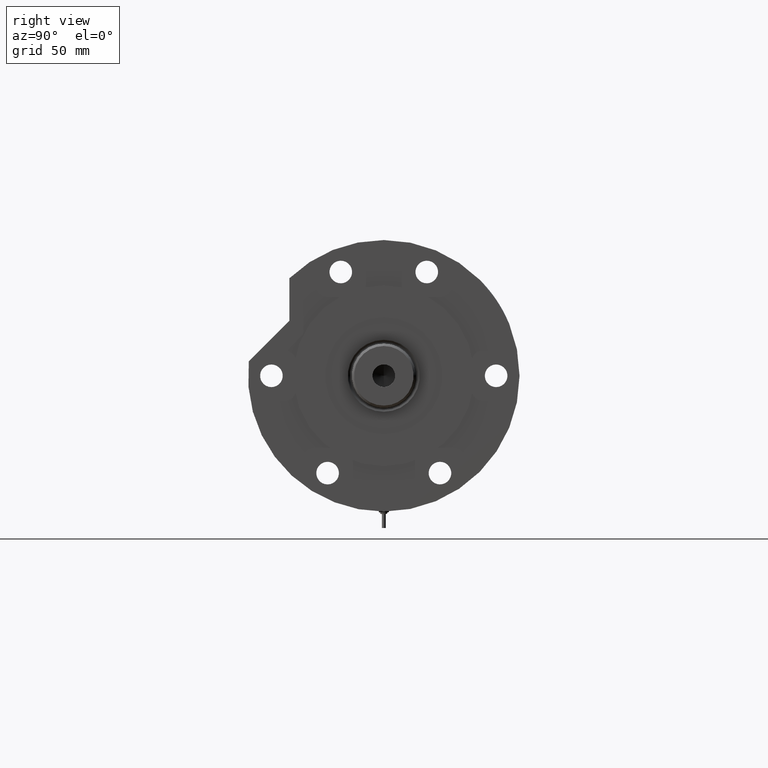
[diagram: clean part render]
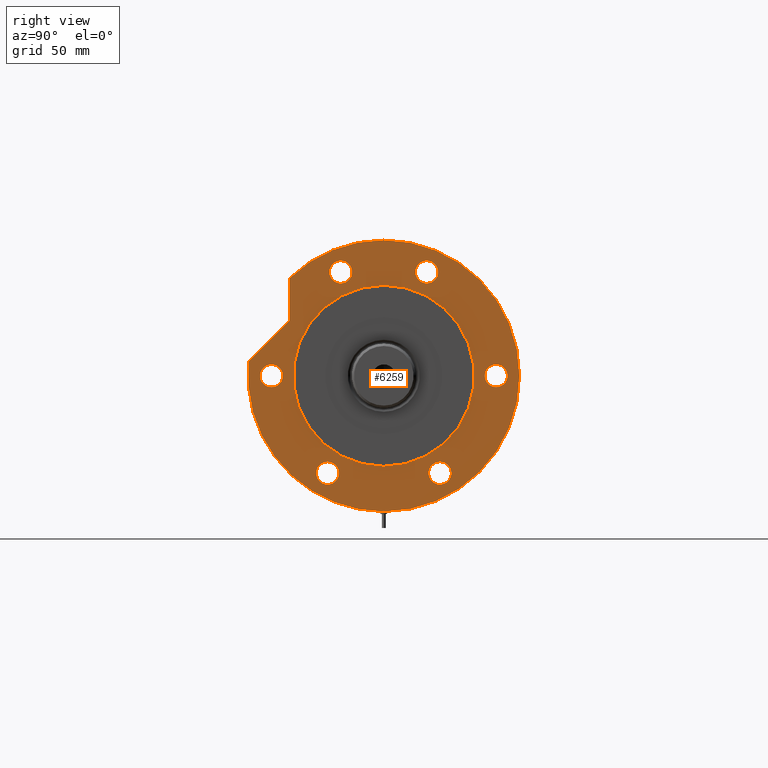
[diagram: same view with one face highlighted and labeled with its STEP entity id]
A machine part, right view. The second image highlights one B-rep face of the part: STEP entity #6259.
In plain terms, the highlighted planar face has unit normal (1, 0, -0).
Its self-contained STEP definition (entity closure, byte-faithful):
#30 = DIRECTION ( 'NONE',  ( 0.7071067811865511255, -0.7071067811865440200, 0.000000000000000000 ) ) ;
#47 = DIRECTION ( 'NONE',  ( 0.000000000000000000, 0.000000000000000000, 1.000000000000000000 ) ) ;
#55 = EDGE_CURVE ( 'NONE', #4494, #668, #3710, .T. ) ;
#89 = AXIS2_PLACEMENT_3D ( 'NONE', #445, #3845, #6160 ) ;
#164 = CARTESIAN_POINT ( 'NONE',  ( -87.00000000000000000, 0.000000000000000000, 31.00000000000000000 ) ) ;
#203 = CIRCLE ( 'NONE', #6911, 7.249999999999992895 ) ;
#259 = CARTESIAN_POINT ( 'NONE',  ( 62.54236590573034249, 60.47687547247904405, 31.00000000000000000 ) ) ;
#288 = CARTESIAN_POINT ( 'NONE',  ( 59.26932634081251905, 27.55320713028675073, 31.00000000000000000 ) ) ;
#336 = DIRECTION ( 'NONE',  ( 1.000000000000000000, 0.000000000000000000, 0.000000000000000000 ) ) ;
#443 = VECTOR ( 'NONE', #30, 999.9999999999998863 ) ;
#445 = CARTESIAN_POINT ( 'NONE',  ( -62.35382907247965534, 35.99999999999985079, 31.00000000000000000 ) ) ;
#470 = ORIENTED_EDGE ( 'NONE', *, *, #3577, .F. ) ;
#480 = EDGE_LOOP ( 'NONE', ( #6977, #1815 ) ) ;
#513 = DIRECTION ( 'NONE',  ( 1.000000000000000000, 0.000000000000000000, 0.000000000000000000 ) ) ;
#542 = EDGE_CURVE ( 'NONE', #1286, #6082, #6138, .T. ) ;
#546 = CARTESIAN_POINT ( 'NONE',  ( 58.00000000000000000, 7.102951435054648059E-15, 31.00000000000000000 ) ) ;
#560 = AXIS2_PLACEMENT_3D ( 'NONE', #1829, #2441, #4154 ) ;
#566 = AXIS2_PLACEMENT_3D ( 'NONE', #2887, #4719, #2322 ) ;
#576 = CIRCLE ( 'NONE', #1559, 7.249999999999992895 ) ;
#593 = CARTESIAN_POINT ( 'NONE',  ( -55.10382907247942796, -36.00000000000027711, 31.00000000000000000 ) ) ;
#608 = LINE ( 'NONE', #4160, #443 ) ;
#612 = CARTESIAN_POINT ( 'NONE',  ( 7.250000000000001776, 72.00000000000000000, 31.00000000000000000 ) ) ;
#668 = VERTEX_POINT ( 'NONE', #4999 ) ;
#723 = ORIENTED_EDGE ( 'NONE', *, *, #4625, .F. ) ;
#830 = EDGE_LOOP ( 'NONE', ( #723, #1274 ) ) ;
#948 = VERTEX_POINT ( 'NONE', #288 ) ;
#1026 = DIRECTION ( 'NONE',  ( 1.000000000000000000, 0.000000000000000000, -0.000000000000000000 ) ) ;
#1040 = AXIS2_PLACEMENT_3D ( 'NONE', #4398, #6636, #5487 ) ;
#1070 = AXIS2_PLACEMENT_3D ( 'NONE', #4401, #3294, #5604 ) ;
#1097 = EDGE_LOOP ( 'NONE', ( #470, #3645 ) ) ;
#1138 = VERTEX_POINT ( 'NONE', #593 ) ;
#1146 = CARTESIAN_POINT ( 'NONE',  ( 59.26932634081251905, -27.55320713028675073, 31.00000000000000000 ) ) ;
#1158 = EDGE_CURVE ( 'NONE', #5825, #948, #1289, .T. ) ;
#1178 = VERTEX_POINT ( 'NONE', #6276 ) ;
#1203 = CIRCLE ( 'NONE', #6189, 7.249999999999992895 ) ;
#1274 = ORIENTED_EDGE ( 'NONE', *, *, #2329, .F. ) ;
#1286 = VERTEX_POINT ( 'NONE', #164 ) ;
#1289 = CIRCLE ( 'NONE', #1775, 7.249999999999992895 ) ;
#1340 = CARTESIAN_POINT ( 'NONE',  ( -69.60382907247965534, 35.99999999999985079, 31.00000000000000000 ) ) ;
#1373 = DIRECTION ( 'NONE',  ( 1.000000000000000000, 0.000000000000000000, -0.000000000000000000 ) ) ;
#1384 = DIRECTION ( 'NONE',  ( 0.000000000000000000, 0.000000000000000000, 1.000000000000000000 ) ) ;
#1395 = ORIENTED_EDGE ( 'NONE', *, *, #2278, .T. ) ;
#1407 = CARTESIAN_POINT ( 'NONE',  ( -62.35382907247942086, -36.00000000000027711, 31.00000000000000000 ) ) ;
#1449 = DIRECTION ( 'NONE',  ( 1.000000000000000000, 0.000000000000000000, 0.000000000000000000 ) ) ;
#1548 = CIRCLE ( 'NONE', #4612, 7.250000000000001776 ) ;
#1554 = CARTESIAN_POINT ( 'NONE',  ( 9.196694222441541555, 86.51254715576759224, 31.00000000000000000 ) ) ;
#1559 = AXIS2_PLACEMENT_3D ( 'NONE', #1407, #3738, #2138 ) ;
#1605 = CARTESIAN_POINT ( 'NONE',  ( 73.76932634081251194, 27.55320713028675073, 31.00000000000000000 ) ) ;
#1680 = CIRCLE ( 'NONE', #3744, 58.00000000000000000 ) ;
#1709 = CARTESIAN_POINT ( 'NONE',  ( 66.51932634081252615, 27.55320713028675073, 31.00000000000000000 ) ) ;
#1733 = ORIENTED_EDGE ( 'NONE', *, *, #3204, .F. ) ;
#1775 = AXIS2_PLACEMENT_3D ( 'NONE', #1709, #47, #5133 ) ;
#1801 = CIRCLE ( 'NONE', #89, 7.250000000000006217 ) ;
#1815 = ORIENTED_EDGE ( 'NONE', *, *, #5747, .F. ) ;
#1829 = CARTESIAN_POINT ( 'NONE',  ( 0.000000000000000000, 72.00000000000000000, 31.00000000000000000 ) ) ;
#1836 = VERTEX_POINT ( 'NONE', #1146 ) ;
#1863 = EDGE_LOOP ( 'NONE', ( #2640, #5160 ) ) ;
#1954 = CIRCLE ( 'NONE', #5471, 58.00000000000000000 ) ;
#1955 = EDGE_CURVE ( 'NONE', #5180, #1990, #608, .T. ) ;
#1964 = ORIENTED_EDGE ( 'NONE', *, *, #542, .T. ) ;
#1990 = VERTEX_POINT ( 'NONE', #6401 ) ;
#2065 = DIRECTION ( 'NONE',  ( 0.000000000000000000, 0.000000000000000000, 1.000000000000000000 ) ) ;
#2105 = CARTESIAN_POINT ( 'NONE',  ( 0.000000000000000000, 0.000000000000000000, 31.00000000000000000 ) ) ;
#2133 = FACE_BOUND ( 'NONE', #2504, .T. ) ;
#2138 = DIRECTION ( 'NONE',  ( 1.000000000000000000, 0.000000000000000000, 0.000000000000000000 ) ) ;
#2140 = CARTESIAN_POINT ( 'NONE',  ( -62.35382907247942086, -36.00000000000027711, 31.00000000000000000 ) ) ;
#2191 = CARTESIAN_POINT ( 'NONE',  ( 0.000000000000000000, 0.000000000000000000, 31.00000000000000000 ) ) ;
#2220 = ORIENTED_EDGE ( 'NONE', *, *, #4650, .F. ) ;
#2243 = DIRECTION ( 'NONE',  ( 1.000000000000000000, 0.000000000000000000, 0.000000000000000000 ) ) ;
#2248 = CARTESIAN_POINT ( 'NONE',  ( -7.250000000000001776, 72.00000000000000000, 31.00000000000000000 ) ) ;
#2278 = EDGE_CURVE ( 'NONE', #5180, #1286, #3250, .T. ) ;
#2281 = EDGE_LOOP ( 'NONE', ( #1733, #4727, #1395, #1964, #4538 ) ) ;
#2322 = DIRECTION ( 'NONE',  ( 1.000000000000000000, 0.000000000000000000, 0.000000000000000000 ) ) ;
#2329 = EDGE_CURVE ( 'NONE', #1178, #4621, #4949, .T. ) ;
#2344 = CARTESIAN_POINT ( 'NONE',  ( 0.000000000000000000, 0.000000000000000000, 31.00000000000000000 ) ) ;
#2373 = EDGE_CURVE ( 'NONE', #7357, #6385, #6410, .T. ) ;
#2374 = VERTEX_POINT ( 'NONE', #6889 ) ;
#2411 = LINE ( 'NONE', #6595, #6053 ) ;
#2441 = DIRECTION ( 'NONE',  ( 0.000000000000000000, 0.000000000000000000, 1.000000000000000000 ) ) ;
#2480 = CARTESIAN_POINT ( 'NONE',  ( 87.00000000000000000, 1.065442715258197209E-14, 31.00000000000000000 ) ) ;
#2504 = EDGE_LOOP ( 'NONE', ( #7364, #3614 ) ) ;
#2640 = ORIENTED_EDGE ( 'NONE', *, *, #4562, .F. ) ;
#2887 = CARTESIAN_POINT ( 'NONE',  ( 0.000000000000000000, -72.00000000000000000, 31.00000000000000000 ) ) ;
#2908 = DIRECTION ( 'NONE',  ( 1.000000000000000000, 0.000000000000000000, 0.000000000000000000 ) ) ;
#2962 = CARTESIAN_POINT ( 'NONE',  ( 0.000000000000000000, 0.000000000000000000, 31.00000000000000000 ) ) ;
#2998 = CARTESIAN_POINT ( 'NONE',  ( 0.000000000000000000, 72.00000000000000000, 31.00000000000000000 ) ) ;
#3093 = ORIENTED_EDGE ( 'NONE', *, *, #5102, .F. ) ;
#3148 = DIRECTION ( 'NONE',  ( 0.000000000000000000, 0.000000000000000000, 1.000000000000000000 ) ) ;
#3159 = AXIS2_PLACEMENT_3D ( 'NONE', #4513, #1384, #5634 ) ;
#3204 = EDGE_CURVE ( 'NONE', #1990, #3385, #2411, .T. ) ;
#3250 = CIRCLE ( 'NONE', #6039, 87.00000000000000000 ) ;
#3252 = CARTESIAN_POINT ( 'NONE',  ( -69.60382907247941375, -36.00000000000027711, 31.00000000000000000 ) ) ;
#3294 = DIRECTION ( 'NONE',  ( 0.000000000000000000, 0.000000000000000000, 1.000000000000000000 ) ) ;
#3299 = EDGE_CURVE ( 'NONE', #4227, #1138, #576, .T. ) ;
#3337 = CARTESIAN_POINT ( 'NONE',  ( -62.35382907247965534, 35.99999999999985079, 31.00000000000000000 ) ) ;
#3385 = VERTEX_POINT ( 'NONE', #259 ) ;
#3476 = DIRECTION ( 'NONE',  ( 0.000000000000000000, 0.000000000000000000, 1.000000000000000000 ) ) ;
#3521 = CIRCLE ( 'NONE', #6569, 87.00000000000000000 ) ;
#3577 = EDGE_CURVE ( 'NONE', #6385, #7357, #5185, .T. ) ;
#3614 = ORIENTED_EDGE ( 'NONE', *, *, #5786, .F. ) ;
#3645 = ORIENTED_EDGE ( 'NONE', *, *, #2373, .F. ) ;
#3710 = CIRCLE ( 'NONE', #6629, 7.250000000000006217 ) ;
#3738 = DIRECTION ( 'NONE',  ( 0.000000000000000000, 0.000000000000000000, 1.000000000000000000 ) ) ;
#3739 = CIRCLE ( 'NONE', #1070, 7.249999999999992895 ) ;
#3744 = AXIS2_PLACEMENT_3D ( 'NONE', #2105, #5483, #1449 ) ;
#3845 = DIRECTION ( 'NONE',  ( 0.000000000000000000, 0.000000000000000000, 1.000000000000000000 ) ) ;
#3888 = FACE_BOUND ( 'NONE', #4425, .T. ) ;
#3929 = PLANE ( 'NONE',  #6936 ) ;
#4107 = AXIS2_PLACEMENT_3D ( 'NONE', #2998, #7468, #2243 ) ;
#4154 = DIRECTION ( 'NONE',  ( 1.000000000000000000, 0.000000000000000000, 0.000000000000000000 ) ) ;
#4160 = CARTESIAN_POINT ( 'NONE',  ( 47.85462068910451450, 47.85462068910500477, 31.00000000000000000 ) ) ;
#4227 = VERTEX_POINT ( 'NONE', #3252 ) ;
#4274 = EDGE_CURVE ( 'NONE', #1836, #2374, #3739, .T. ) ;
#4393 = CARTESIAN_POINT ( 'NONE',  ( 66.51932634081252615, 27.55320713028675073, 31.00000000000000000 ) ) ;
#4398 = CARTESIAN_POINT ( 'NONE',  ( 0.000000000000000000, 0.000000000000000000, 31.00000000000000000 ) ) ;
#4401 = CARTESIAN_POINT ( 'NONE',  ( 66.51932634081252615, -27.55320713028675073, 31.00000000000000000 ) ) ;
#4425 = EDGE_LOOP ( 'NONE', ( #7415, #3093 ) ) ;
#4442 = DIRECTION ( 'NONE',  ( 1.000000000000000000, 0.000000000000000000, 0.000000000000000000 ) ) ;
#4494 = VERTEX_POINT ( 'NONE', #1340 ) ;
#4513 = CARTESIAN_POINT ( 'NONE',  ( 66.51932634081252615, -27.55320713028675073, 31.00000000000000000 ) ) ;
#4538 = ORIENTED_EDGE ( 'NONE', *, *, #6822, .T. ) ;
#4562 = EDGE_CURVE ( 'NONE', #7446, #6915, #1680, .T. ) ;
#4612 = AXIS2_PLACEMENT_3D ( 'NONE', #7283, #2065, #336 ) ;
#4621 = VERTEX_POINT ( 'NONE', #6129 ) ;
#4625 = EDGE_CURVE ( 'NONE', #4621, #1178, #1548, .T. ) ;
#4650 = EDGE_CURVE ( 'NONE', #948, #5825, #203, .T. ) ;
#4719 = DIRECTION ( 'NONE',  ( 0.000000000000000000, 0.000000000000000000, 1.000000000000000000 ) ) ;
#4727 = ORIENTED_EDGE ( 'NONE', *, *, #1955, .F. ) ;
#4895 = DIRECTION ( 'NONE',  ( 1.000000000000000000, 0.000000000000000000, 0.000000000000000000 ) ) ;
#4949 = CIRCLE ( 'NONE', #566, 7.250000000000001776 ) ;
#4999 = CARTESIAN_POINT ( 'NONE',  ( -55.10382907247964823, 35.99999999999985079, 31.00000000000000000 ) ) ;
#5102 = EDGE_CURVE ( 'NONE', #668, #4494, #1801, .T. ) ;
#5133 = DIRECTION ( 'NONE',  ( 1.000000000000000000, 0.000000000000000000, 0.000000000000000000 ) ) ;
#5160 = ORIENTED_EDGE ( 'NONE', *, *, #7242, .F. ) ;
#5180 = VERTEX_POINT ( 'NONE', #1554 ) ;
#5185 = CIRCLE ( 'NONE', #560, 7.250000000000001776 ) ;
#5471 = AXIS2_PLACEMENT_3D ( 'NONE', #2191, #3476, #2908 ) ;
#5483 = DIRECTION ( 'NONE',  ( 0.000000000000000000, 0.000000000000000000, 1.000000000000000000 ) ) ;
#5487 = DIRECTION ( 'NONE',  ( 1.000000000000000000, 0.000000000000000000, 0.000000000000000000 ) ) ;
#5510 = FACE_BOUND ( 'NONE', #830, .T. ) ;
#5546 = FACE_BOUND ( 'NONE', #6621, .T. ) ;
#5556 = DIRECTION ( 'NONE',  ( 1.000000000000000000, 0.000000000000000000, 0.000000000000000000 ) ) ;
#5590 = DIRECTION ( 'NONE',  ( 0.000000000000000000, 0.000000000000000000, 1.000000000000000000 ) ) ;
#5604 = DIRECTION ( 'NONE',  ( 1.000000000000000000, 0.000000000000000000, 0.000000000000000000 ) ) ;
#5634 = DIRECTION ( 'NONE',  ( 1.000000000000000000, 0.000000000000000000, 0.000000000000000000 ) ) ;
#5665 = FACE_BOUND ( 'NONE', #1863, .T. ) ;
#5747 = EDGE_CURVE ( 'NONE', #2374, #1836, #6677, .T. ) ;
#5786 = EDGE_CURVE ( 'NONE', #1138, #4227, #1203, .T. ) ;
#5825 = VERTEX_POINT ( 'NONE', #1605 ) ;
#5846 = DIRECTION ( 'NONE',  ( 0.000000000000000000, 0.000000000000000000, 1.000000000000000000 ) ) ;
#6039 = AXIS2_PLACEMENT_3D ( 'NONE', #2962, #6320, #7541 ) ;
#6053 = VECTOR ( 'NONE', #1373, 1000.000000000000000 ) ;
#6082 = VERTEX_POINT ( 'NONE', #2480 ) ;
#6124 = FACE_OUTER_BOUND ( 'NONE', #2281, .T. ) ;
#6129 = CARTESIAN_POINT ( 'NONE',  ( -7.250000000000001776, -72.00000000000000000, 31.00000000000000000 ) ) ;
#6138 = CIRCLE ( 'NONE', #1040, 87.00000000000000000 ) ;
#6160 = DIRECTION ( 'NONE',  ( 1.000000000000000000, 0.000000000000000000, 0.000000000000000000 ) ) ;
#6189 = AXIS2_PLACEMENT_3D ( 'NONE', #2140, #3148, #4895 ) ;
#6259 = ADVANCED_FACE ( 'NONE', ( #6819, #5546, #7320, #5510, #2133, #3888, #6124, #5665 ), #3929, .T. ) ;
#6274 = ORIENTED_EDGE ( 'NONE', *, *, #1158, .F. ) ;
#6276 = CARTESIAN_POINT ( 'NONE',  ( 7.250000000000001776, -72.00000000000000000, 31.00000000000000000 ) ) ;
#6320 = DIRECTION ( 'NONE',  ( 0.000000000000000000, 0.000000000000000000, 1.000000000000000000 ) ) ;
#6385 = VERTEX_POINT ( 'NONE', #2248 ) ;
#6401 = CARTESIAN_POINT ( 'NONE',  ( 35.23236590573035443, 60.47687547247904405, 31.00000000000000000 ) ) ;
#6410 = CIRCLE ( 'NONE', #4107, 7.250000000000001776 ) ;
#6569 = AXIS2_PLACEMENT_3D ( 'NONE', #2344, #5846, #513 ) ;
#6595 = CARTESIAN_POINT ( 'NONE',  ( 0.000000000000000000, 60.47687547247904405, 31.00000000000000000 ) ) ;
#6621 = EDGE_LOOP ( 'NONE', ( #2220, #6274 ) ) ;
#6629 = AXIS2_PLACEMENT_3D ( 'NONE', #3337, #6721, #4442 ) ;
#6636 = DIRECTION ( 'NONE',  ( 0.000000000000000000, 0.000000000000000000, 1.000000000000000000 ) ) ;
#6677 = CIRCLE ( 'NONE', #3159, 7.249999999999992895 ) ;
#6708 = DIRECTION ( 'NONE',  ( 0.000000000000000000, 0.000000000000000000, 1.000000000000000000 ) ) ;
#6721 = DIRECTION ( 'NONE',  ( 0.000000000000000000, 0.000000000000000000, 1.000000000000000000 ) ) ;
#6819 = FACE_BOUND ( 'NONE', #1097, .T. ) ;
#6822 = EDGE_CURVE ( 'NONE', #6082, #3385, #3521, .T. ) ;
#6889 = CARTESIAN_POINT ( 'NONE',  ( 73.76932634081251194, -27.55320713028675073, 31.00000000000000000 ) ) ;
#6911 = AXIS2_PLACEMENT_3D ( 'NONE', #4393, #6708, #5556 ) ;
#6915 = VERTEX_POINT ( 'NONE', #546 ) ;
#6936 = AXIS2_PLACEMENT_3D ( 'NONE', #7277, #5590, #1026 ) ;
#6977 = ORIENTED_EDGE ( 'NONE', *, *, #4274, .F. ) ;
#7099 = CARTESIAN_POINT ( 'NONE',  ( -58.00000000000000000, 0.000000000000000000, 31.00000000000000000 ) ) ;
#7242 = EDGE_CURVE ( 'NONE', #6915, #7446, #1954, .T. ) ;
#7277 = CARTESIAN_POINT ( 'NONE',  ( 0.000000000000000000, 0.000000000000000000, 31.00000000000000000 ) ) ;
#7283 = CARTESIAN_POINT ( 'NONE',  ( 0.000000000000000000, -72.00000000000000000, 31.00000000000000000 ) ) ;
#7320 = FACE_BOUND ( 'NONE', #480, .T. ) ;
#7357 = VERTEX_POINT ( 'NONE', #612 ) ;
#7364 = ORIENTED_EDGE ( 'NONE', *, *, #3299, .F. ) ;
#7415 = ORIENTED_EDGE ( 'NONE', *, *, #55, .F. ) ;
#7446 = VERTEX_POINT ( 'NONE', #7099 ) ;
#7468 = DIRECTION ( 'NONE',  ( 0.000000000000000000, 0.000000000000000000, 1.000000000000000000 ) ) ;
#7541 = DIRECTION ( 'NONE',  ( 1.000000000000000000, 0.000000000000000000, 0.000000000000000000 ) ) ;